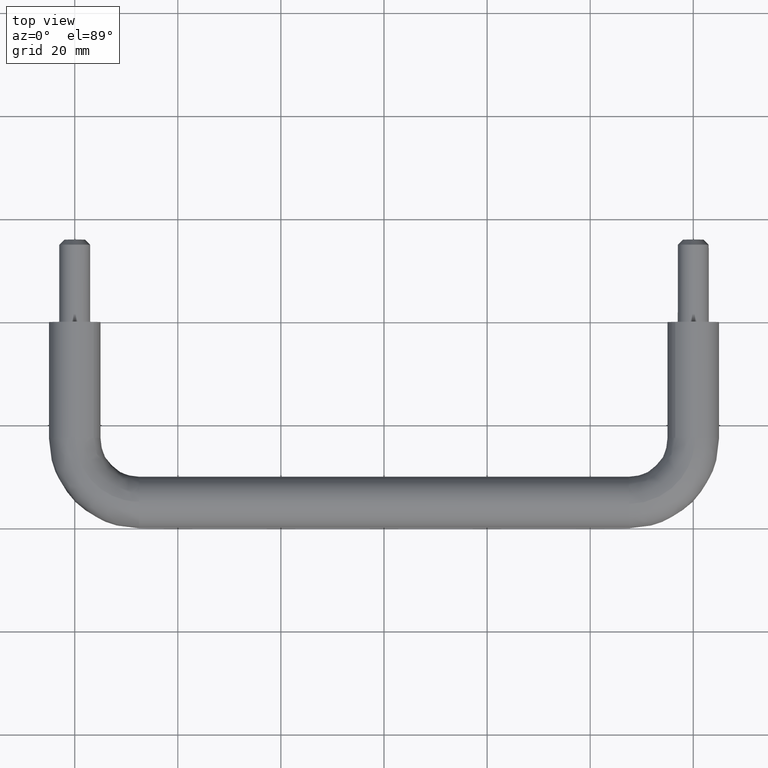
[diagram: clean part render]
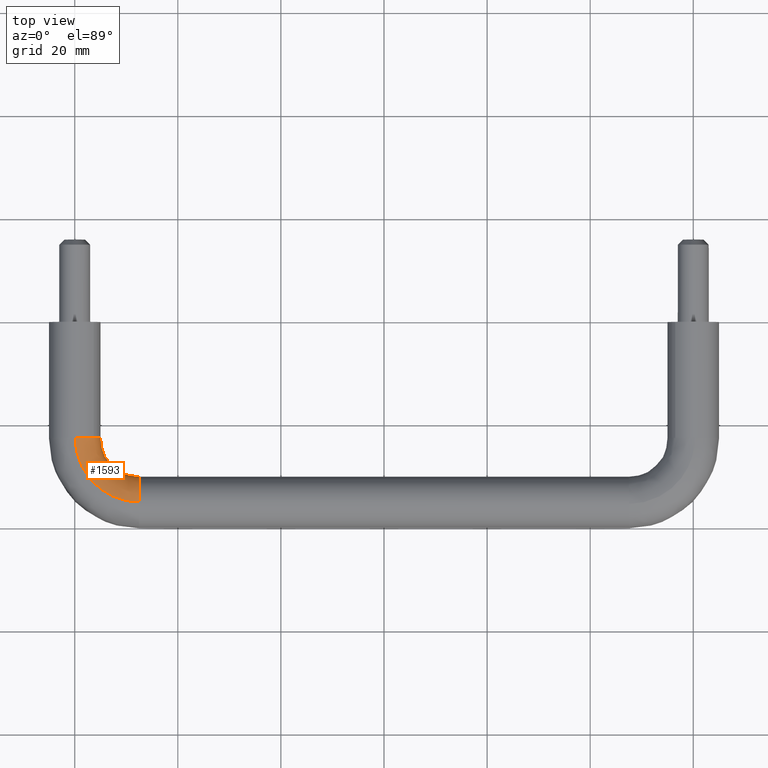
[diagram: same view with one face highlighted and labeled with its STEP entity id]
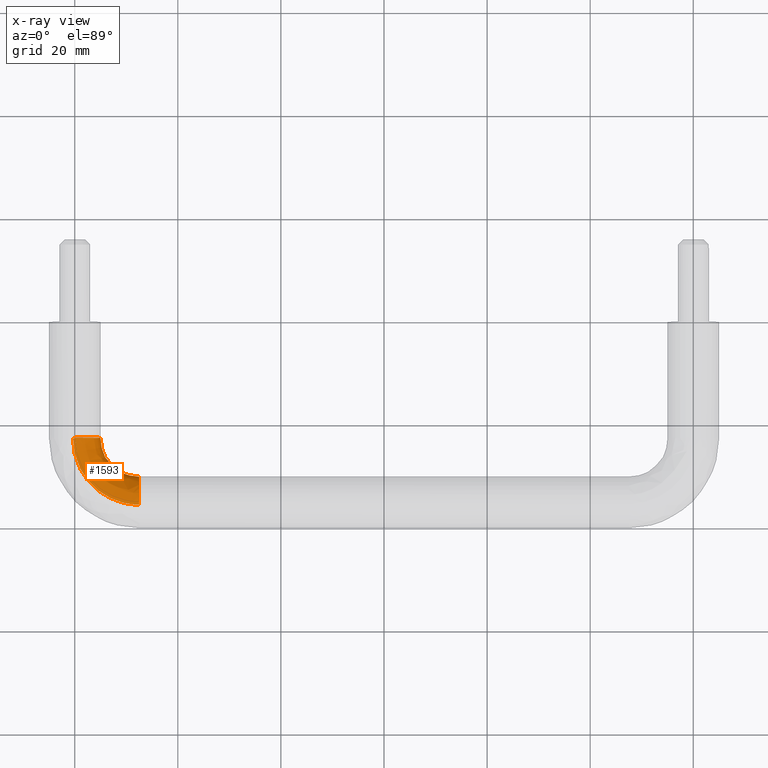
[diagram: x-ray of the same camera — body ghosted, the highlighted face saturated]
A machine part, top view. The second image highlights one B-rep face of the part: STEP entity #1593.
The next image is the same camera in x-ray: the body ghosted, the highlighted face saturated — about 0% of this face is hidden behind the body in this view.
In plain terms, the highlighted face is a freeform B-spline surface patch.
Its self-contained STEP definition (entity closure, byte-faithful):
#969=CARTESIAN_POINT('',(12.499999999949400,-30.521972536863860,2.224245948429610));
#970=VERTEX_POINT('',#969);
#976=CARTESIAN_POINT('',(12.499999999521330,-34.937169799960493,4.999605221011253));
#977=VERTEX_POINT('',#976);
#978=CARTESIAN_POINT('',(12.499999999949399,-30.521972536863856,2.224245948429611));
#979=CARTESIAN_POINT('',(12.499999999817589,-31.881425326504711,4.961203581291151));
#980=CARTESIAN_POINT('',(12.499999999521334,-34.937169799960486,4.999605221011253));
#988=(BOUNDED_CURVE()B_SPLINE_CURVE(2,(#978,#979,#980),.UNSPECIFIED.,.F.,.U.)B_SPLINE_CURVE_WITH_KNOTS((3,3),(0.575619190623804,0.747784295877918),.UNSPECIFIED.)CURVE()GEOMETRIC_REPRESENTATION_ITEM()RATIONAL_B_SPLINE_CURVE((0.876408099967255,0.796725658657972,0.994854295543177))REPRESENTATION_ITEM(''));
#989=EDGE_CURVE('',#970,#977,#988,.T.);
#1008=CARTESIAN_POINT('',(12.499999942683930,-35.348666308206170,-4.987828365683995));
#1009=VERTEX_POINT('',#1008);
#1023=CARTESIAN_POINT('',(12.500000000000000,-31.558228442135000,-3.626873108266699));
#1024=VERTEX_POINT('',#1023);
#1025=CARTESIAN_POINT('',(12.499999942683939,-35.348666308206170,-4.987828365683995));
#1026=CARTESIAN_POINT('',(12.500000000000002,-35.174545629886815,-4.999999999999999));
#1027=CARTESIAN_POINT('',(12.500000000000000,-35.0,-5.0));
#1028=CARTESIAN_POINT('',(12.500000000000005,-33.005203325312003,-5.0));
#1029=CARTESIAN_POINT('',(12.500000000000000,-31.558228442135000,-3.626873108266699));
#1037=(BOUNDED_CURVE()B_SPLINE_CURVE(2,(#1025,#1026,#1027,#1028,#1029),.UNSPECIFIED.,.F.,.U.)B_SPLINE_CURVE_WITH_KNOTS((3,2,3),(0.237833683064406,0.250000000000000,0.371049471708747),.UNSPECIFIED.)CURVE()GEOMETRIC_REPRESENTATION_ITEM()RATIONAL_B_SPLINE_CURVE((0.972879869046176,0.985746273086517,1.0,0.858181722382228,0.853699665438662))REPRESENTATION_ITEM(''));
#1038=EDGE_CURVE('',#1009,#1024,#1037,.T.);
#1138=CARTESIAN_POINT('',(12.500000000000000,-30.0,0.0));
#1139=VERTEX_POINT('',#1138);
#1140=CARTESIAN_POINT('',(12.500000000000000,-31.558228442135000,-3.626873108266699));
#1141=CARTESIAN_POINT('',(12.500000000000002,-30.000000000000007,-2.148170608151419));
#1142=CARTESIAN_POINT('',(12.500000000000000,-30.0,0.0));
#1150=(BOUNDED_CURVE()B_SPLINE_CURVE(2,(#1140,#1141,#1142),.UNSPECIFIED.,.F.,.U.)B_SPLINE_CURVE_WITH_KNOTS((3,3),(0.371049471708747,0.500000000000000),.UNSPECIFIED.)CURVE()GEOMETRIC_REPRESENTATION_ITEM()RATIONAL_B_SPLINE_CURVE((0.853699665438662,0.848925058804319,1.0))REPRESENTATION_ITEM(''));
#1151=EDGE_CURVE('',#1024,#1139,#1150,.T.);
#1153=CARTESIAN_POINT('',(12.500000000000000,-30.0,0.0));
#1154=CARTESIAN_POINT('',(12.499999999999991,-30.0,1.173369647373951));
#1155=CARTESIAN_POINT('',(12.499999999949392,-30.521972536863863,2.224245948429611));
#1163=(BOUNDED_CURVE()B_SPLINE_CURVE(2,(#1153,#1154,#1155),.UNSPECIFIED.,.F.,.U.)B_SPLINE_CURVE_WITH_KNOTS((3,3),(0.500000000000000,0.575619190623804),.UNSPECIFIED.)CURVE()GEOMETRIC_REPRESENTATION_ITEM()RATIONAL_B_SPLINE_CURVE((1.0,0.911406607416505,0.876408099967255))REPRESENTATION_ITEM(''));
#1164=EDGE_CURVE('',#1139,#970,#1163,.T.);
#1188=CARTESIAN_POINT('',(2.421098661299536,-22.500000000000000,-4.374732137200357));
#1189=VERTEX_POINT('',#1188);
#1190=CARTESIAN_POINT('',(5.000000000000003,-22.500000000000000,0.0));
#1191=VERTEX_POINT('',#1190);
#1192=CARTESIAN_POINT('',(2.421098661299535,-22.499999999999996,-4.374732137200357));
#1193=CARTESIAN_POINT('',(5.000000000000003,-22.499999999999996,-2.947496278403269));
#1194=CARTESIAN_POINT('',(5.000000000000003,-22.500000000000000,0.0));
#1202=(BOUNDED_CURVE()B_SPLINE_CURVE(2,(#1192,#1193,#1194),.UNSPECIFIED.,.F.,.U.)B_SPLINE_CURVE_WITH_KNOTS((3,3),(0.332484288972585,0.500000000000000),.UNSPECIFIED.)CURVE()GEOMETRIC_REPRESENTATION_ITEM()RATIONAL_B_SPLINE_CURVE((0.870495137451408,0.803743136781425,1.0))REPRESENTATION_ITEM(''));
#1203=EDGE_CURVE('',#1189,#1191,#1202,.T.);
#1242=CARTESIAN_POINT('',(3.686388599247899,-22.500000000324619,3.377948947709638));
#1243=VERTEX_POINT('',#1242);
#1249=CARTESIAN_POINT('',(5.000000000000003,-22.500000000000000,0.0));
#1250=CARTESIAN_POINT('',(5.000000000000003,-22.500000000000004,1.944392027145290));
#1251=CARTESIAN_POINT('',(3.686388599247899,-22.500000000324626,3.377948947709638));
#1259=(BOUNDED_CURVE()B_SPLINE_CURVE(2,(#1249,#1250,#1251),.UNSPECIFIED.,.F.,.U.)B_SPLINE_CURVE_WITH_KNOTS((3,3),(0.500000000000000,0.618415123476215),.UNSPECIFIED.)CURVE()GEOMETRIC_REPRESENTATION_ITEM()RATIONAL_B_SPLINE_CURVE((1.0,0.861268053315436,0.853959791404858))REPRESENTATION_ITEM(''));
#1260=EDGE_CURVE('',#1191,#1243,#1259,.T.);
#1287=CARTESIAN_POINT('',(-0.348666262534672,-22.500000001229829,-4.987828368876588));
#1288=VERTEX_POINT('',#1287);
#1289=CARTESIAN_POINT('',(-0.348666262534672,-22.500000001229825,-4.987828368876588));
#1290=CARTESIAN_POINT('',(-0.174545584048076,-22.500000000000004,-5.000000000000001));
#1291=CARTESIAN_POINT('',(2.755364E-015,-22.500000000000000,-5.0));
#1292=CARTESIAN_POINT('',(1.291289514141870,-22.500000000000004,-5.000000000000001));
#1293=CARTESIAN_POINT('',(2.421098661299535,-22.499999999999996,-4.374732137200357));
#1301=(BOUNDED_CURVE()B_SPLINE_CURVE(2,(#1289,#1290,#1291,#1292,#1293),.UNSPECIFIED.,.F.,.U.)B_SPLINE_CURVE_WITH_KNOTS((3,2,3),(0.237833686213952,0.250000000000000,0.332484288972585),.UNSPECIFIED.)CURVE()GEOMETRIC_REPRESENTATION_ITEM()RATIONAL_B_SPLINE_CURVE((0.972879875707737,0.985746276776439,1.0,0.903363644405122,0.870495137451408))REPRESENTATION_ITEM(''));
#1302=EDGE_CURVE('',#1288,#1189,#1301,.T.);
#1319=CARTESIAN_POINT('',(0.062830201473882,-22.500000001219831,4.999605220993228));
#1320=VERTEX_POINT('',#1319);
#1336=CARTESIAN_POINT('',(3.686388599247899,-22.500000000324626,3.377948947709638));
#1337=CARTESIAN_POINT('',(2.225318335695636,-22.500000000685549,4.972429161364217));
#1338=CARTESIAN_POINT('',(0.062830201473882,-22.500000001219828,4.999605220993228));
#1346=(BOUNDED_CURVE()B_SPLINE_CURVE(2,(#1336,#1337,#1338),.UNSPECIFIED.,.F.,.U.)B_SPLINE_CURVE_WITH_KNOTS((3,3),(0.618415123476215,0.747784295777005),.UNSPECIFIED.)CURVE()GEOMETRIC_REPRESENTATION_ITEM()RATIONAL_B_SPLINE_CURVE((0.853959791404858,0.845975475157291,0.994854295310916))REPRESENTATION_ITEM(''));
#1347=EDGE_CURVE('',#1243,#1320,#1346,.T.);
#1521=CARTESIAN_POINT('',(0.062830201473882,-22.500000001219835,4.999605220993228));
#1522=CARTESIAN_POINT('',(0.062830201856423,-34.937169799625885,4.999605221019079));
#1523=CARTESIAN_POINT('',(12.499999999521334,-34.937169799960486,4.999605221011254));
#1531=(BOUNDED_CURVE()B_SPLINE_CURVE(2,(#1521,#1522,#1523),.UNSPECIFIED.,.F.,.U.)B_SPLINE_CURVE_WITH_KNOTS((3,3),(-1.747842683464338,-0.278273131025898),.UNSPECIFIED.)CURVE()GEOMETRIC_REPRESENTATION_ITEM()RATIONAL_B_SPLINE_CURVE((0.893710737890176,0.628668022939517,0.884455039427532))REPRESENTATION_ITEM(''));
#1532=EDGE_CURVE('',#1320,#977,#1531,.T.);
#1536=CARTESIAN_POINT('',(-0.348666262534672,-22.500000001229818,-4.987828368876588));
#1537=CARTESIAN_POINT('',(-0.348666255417557,-35.348666143245083,-4.987828369202160));
#1538=CARTESIAN_POINT('',(12.499999942683937,-35.348666308206177,-4.987828365683996));
#1546=(BOUNDED_CURVE()B_SPLINE_CURVE(2,(#1536,#1537,#1538),.UNSPECIFIED.,.F.,.U.)B_SPLINE_CURVE_WITH_KNOTS((3,3),(-1.747842683469275,-0.278273140169127),.UNSPECIFIED.)CURVE()GEOMETRIC_REPRESENTATION_ITEM()RATIONAL_B_SPLINE_CURVE((0.873607430522281,0.614526640808866,0.864559928471628))REPRESENTATION_ITEM(''));
#1547=EDGE_CURVE('',#1288,#1009,#1546,.T.);
#1552=CARTESIAN_POINT('',(0.092613886507801,-21.639789282059059,4.999605221019078));
#1553=CARTESIAN_POINT('',(-0.896508098610297,-35.906547562030340,4.999605221019078));
#1554=CARTESIAN_POINT('',(13.369505199015805,-34.906738223942021,4.999605221019078));
#1555=CARTESIAN_POINT('',(5.080246393487504,-21.985584512449204,4.936775021602315));
#1556=CARTESIAN_POINT('',(4.488740547757428,-30.517263161987476,4.936775021602317));
#1557=CARTESIAN_POINT('',(13.019973689644695,-29.919366161422730,4.936775021602316));
#1558=CARTESIAN_POINT('',(5.017566655552677,-21.981238892680782,-0.062830199416763));
#1559=CARTESIAN_POINT('',(4.421063955026138,-30.584990472164840,-0.062830199416763));
#1560=CARTESIAN_POINT('',(13.024366263351093,-29.982042626343656,-0.062830199416763));
#1561=CARTESIAN_POINT('',(4.954886917617852,-21.976893272912356,-5.062435420435842));
#1562=CARTESIAN_POINT('',(4.353387362294850,-30.652717782342219,-5.062435420435843));
#1563=CARTESIAN_POINT('',(13.028758837057495,-30.044719091264589,-5.062435420435841));
#1564=CARTESIAN_POINT('',(-0.032745589361852,-21.631098042522197,-4.999605221019078));
#1565=CARTESIAN_POINT('',(-1.031861284072877,-36.042002182385090,-4.999605221019078));
#1566=CARTESIAN_POINT('',(13.378290346428601,-35.032091153783874,-4.999605221019078));
#1567=CARTESIAN_POINT('',(-0.175489351134784,-21.621201541142050,-4.997807049440652));
#1568=CARTESIAN_POINT('',(-1.185984637946560,-36.196241037683627,-4.997807049440652));
#1569=CARTESIAN_POINT('',(13.388293778404794,-35.174827461755434,-4.997807049440652));
#1570=CARTESIAN_POINT('',(-0.317896872482902,-21.611328351490460,-4.987828388444838));
#1571=CARTESIAN_POINT('',(-1.339744946168815,-36.350116575261055,-4.987828388444838));
#1572=CARTESIAN_POINT('',(13.398273646771797,-35.317227546860011,-4.987828388444837));
#1580=(BOUNDED_SURFACE()B_SPLINE_SURFACE(2,2,((#1552,#1555,#1558,#1561,#1564,#1567,#1570),(#1553,#1556,#1559,#1562,#1565,#1568,#1571),(#1554,#1557,#1560,#1563,#1566,#1569,#1572)),.UNSPECIFIED.,.F.,.F.,.U.)B_SPLINE_SURFACE_WITH_KNOTS((3,3),(3,2,2,3),(0.0,23.414888567449012),(0.0,8.284271247461900,16.568542494923800,16.899913028802409),.UNSPECIFIED.)GEOMETRIC_REPRESENTATION_ITEM()RATIONAL_B_SPLINE_SURFACE(((0.921487970695580,0.651590392860676,0.921487970695580,0.651590392860676,0.921487970695580,0.910692077877960,0.900759855662087),(0.601353110281207,0.425220862167464,0.601353110281207,0.425220862167464,0.601353110281207,0.594307827075570,0.587826165988871),(0.911307631818076,0.644391806205615,0.911307631818076,0.644391806205615,0.911307631818076,0.900631008975608,0.890808515145976)))REPRESENTATION_ITEM('')SURFACE());
#1581=ORIENTED_EDGE('',*,*,#1151,.F.);
#1582=ORIENTED_EDGE('',*,*,#1038,.F.);
#1583=ORIENTED_EDGE('',*,*,#1547,.F.);
#1584=ORIENTED_EDGE('',*,*,#1302,.T.);
#1585=ORIENTED_EDGE('',*,*,#1203,.T.);
#1586=ORIENTED_EDGE('',*,*,#1260,.T.);
#1587=ORIENTED_EDGE('',*,*,#1347,.T.);
#1588=ORIENTED_EDGE('',*,*,#1532,.T.);
#1589=ORIENTED_EDGE('',*,*,#989,.F.);
#1590=ORIENTED_EDGE('',*,*,#1164,.F.);
#1591=EDGE_LOOP('',(#1581,#1582,#1583,#1584,#1585,#1586,#1587,#1588,#1589,#1590));
#1592=FACE_OUTER_BOUND('',#1591,.T.);
#1593=ADVANCED_FACE('',(#1592),#1580,.T.);